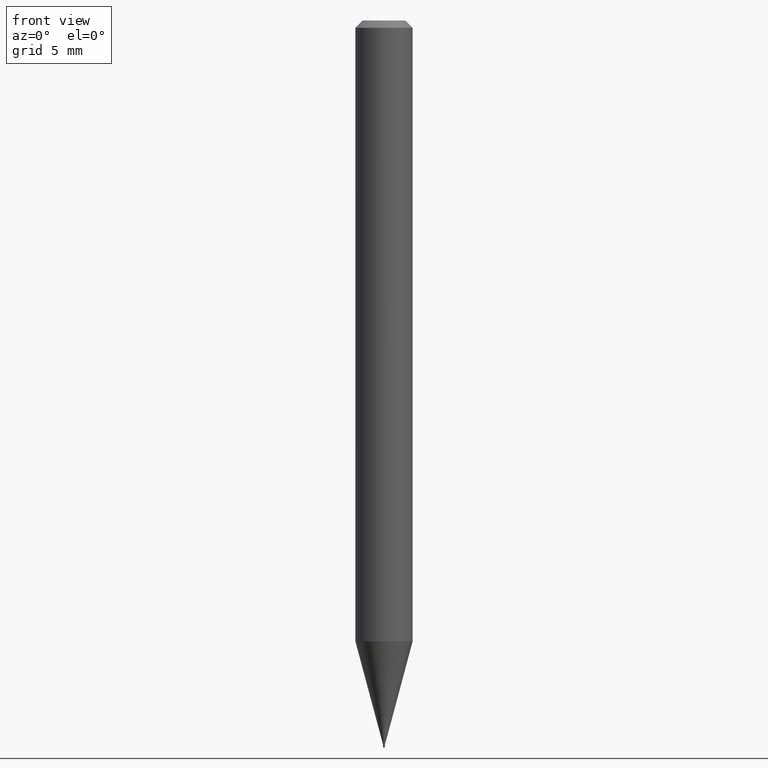
[diagram: clean part render]
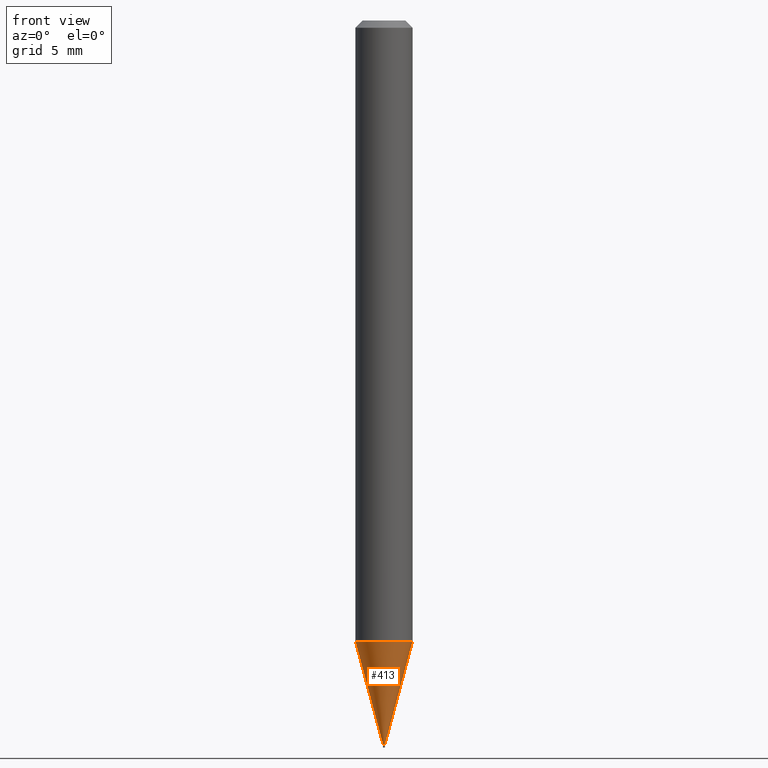
[diagram: same view with one face highlighted and labeled with its STEP entity id]
A machine part, front view. The second image highlights one B-rep face of the part: STEP entity #413.
In plain terms, the highlighted conical surface has half-angle 15 deg.
Its self-contained STEP definition (entity closure, byte-faithful):
#12 = VECTOR ( 'NONE', #301, 39.37007874015748143 ) ;
#15 = CARTESIAN_POINT ( 'NONE',  ( 3.132645293456470414E-29, -4.472587242026769909E-15, -1.280999898887817068 ) ) ;
#29 = DIRECTION ( 'NONE',  ( 0.2588190451025210725, 1.565188264969624137E-15, 0.9659258262890682012 ) ) ;
#33 = VERTEX_POINT ( 'NONE', #376 ) ;
#34 = CIRCLE ( 'NONE', #63, 0.001949999999999927269 ) ;
#54 = VERTEX_POINT ( 'NONE', #73 ) ;
#63 = AXIS2_PLACEMENT_3D ( 'NONE', #179, #465, #422 ) ;
#73 = CARTESIAN_POINT ( 'NONE',  ( 0.05905000000000000526, -4.884931188144144829E-15, -1.280999898887817068 ) ) ;
#76 = ORIENTED_EDGE ( 'NONE', *, *, #407, .F. ) ;
#107 = ORIENTED_EDGE ( 'NONE', *, *, #382, .F. ) ;
#120 = DIRECTION ( 'NONE',  ( -2.445468806185136597E-29, 3.491481338843145583E-15, 1.000000000000000000 ) ) ;
#125 = FACE_OUTER_BOUND ( 'NONE', #262, .T. ) ;
#129 = DIRECTION ( 'NONE',  ( 1.000000000000000000, -6.982962677686418961E-15, 0.000000000000000000 ) ) ;
#135 = AXIS2_PLACEMENT_3D ( 'NONE', #15, #120, #229 ) ;
#145 = CIRCLE ( 'NONE', #135, 0.05904999999999999832 ) ;
#166 = DIRECTION ( 'NONE',  ( -2.445468806185136597E-29, 3.491481338843145583E-15, 1.000000000000000000 ) ) ;
#167 = VERTEX_POINT ( 'NONE', #344 ) ;
#177 = ORIENTED_EDGE ( 'NONE', *, *, #463, .T. ) ;
#179 = CARTESIAN_POINT ( 'NONE',  ( 3.653774943321212865E-29, -5.216622268365544435E-15, -1.494099999999999984 ) ) ;
#189 = VERTEX_POINT ( 'NONE', #456 ) ;
#229 = DIRECTION ( 'NONE',  ( 1.000000000000000000, -6.982962677686273021E-15, 0.000000000000000000 ) ) ;
#231 = CARTESIAN_POINT ( 'NONE',  ( -0.001949999999999927269, -5.202766685018222429E-15, -1.494099999999999984 ) ) ;
#262 = EDGE_LOOP ( 'NONE', ( #107, #177, #327, #76 ) ) ;
#266 = CARTESIAN_POINT ( 'NONE',  ( 3.653774943321212865E-29, -5.216622268365544435E-15, -1.494099999999999984 ) ) ;
#267 = LINE ( 'NONE', #231, #12 ) ;
#285 = VECTOR ( 'NONE', #29, 39.37007874015748143 ) ;
#301 = DIRECTION ( 'NONE',  ( -0.2588190451025210725, 5.211531920934548675E-15, 0.9659258262890682012 ) ) ;
#327 = ORIENTED_EDGE ( 'NONE', *, *, #365, .T. ) ;
#342 = CARTESIAN_POINT ( 'NONE',  ( 0.001949999999999927269, -5.230239045587032162E-15, -1.494099999999999984 ) ) ;
#344 = CARTESIAN_POINT ( 'NONE',  ( -0.001949999999999927269, -4.627889220789326817E-15, -1.494099999999999984 ) ) ;
#365 = EDGE_CURVE ( 'NONE', #33, #54, #419, .T. ) ;
#373 = AXIS2_PLACEMENT_3D ( 'NONE', #266, #166, #129 ) ;
#376 = CARTESIAN_POINT ( 'NONE',  ( 0.001949999999999927269, -5.230239045587032162E-15, -1.494099999999999984 ) ) ;
#382 = EDGE_CURVE ( 'NONE', #167, #189, #267, .T. ) ;
#396 = CONICAL_SURFACE ( 'NONE', #373, 0.001949999999999927269, 0.2617993877991497409 ) ;
#407 = EDGE_CURVE ( 'NONE', #189, #54, #145, .T. ) ;
#413 = ADVANCED_FACE ( 'NONE', ( #125 ), #396, .T. ) ;
#419 = LINE ( 'NONE', #342, #285 ) ;
#422 = DIRECTION ( 'NONE',  ( 1.000000000000000000, -6.982962677686418961E-15, 0.000000000000000000 ) ) ;
#456 = CARTESIAN_POINT ( 'NONE',  ( -0.05905000000000000526, -4.053011756560430416E-15, -1.280999898887817068 ) ) ;
#463 = EDGE_CURVE ( 'NONE', #167, #33, #34, .T. ) ;
#465 = DIRECTION ( 'NONE',  ( -2.445468806185136597E-29, 3.491481338843145583E-15, 1.000000000000000000 ) ) ;